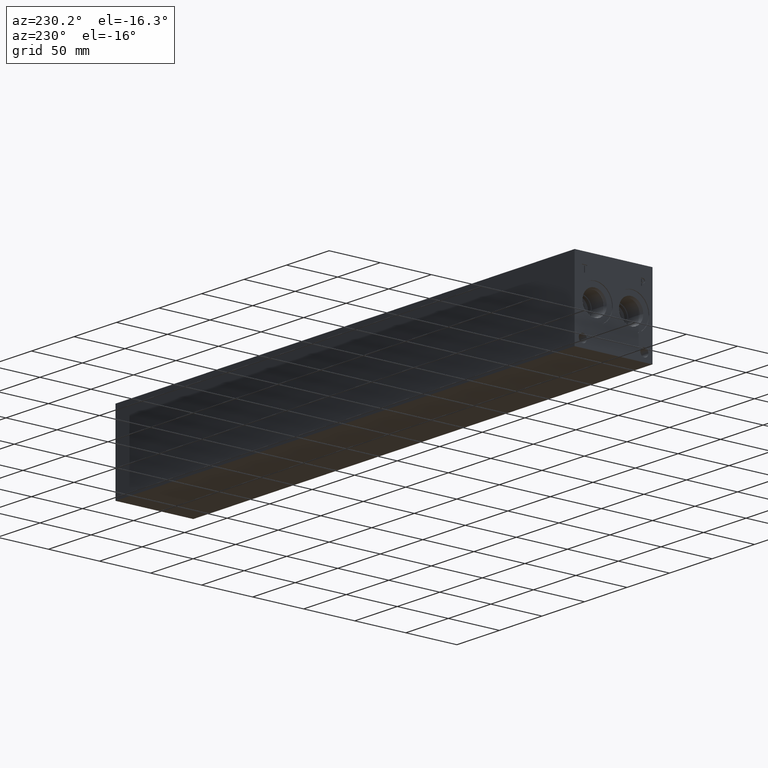
[diagram: clean part render]
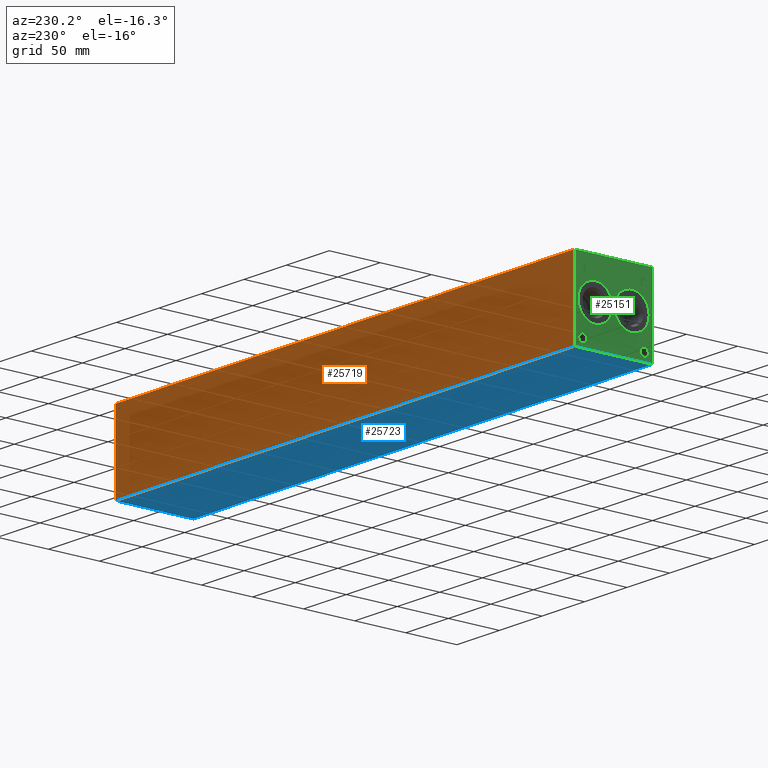
[diagram: same view with three faces highlighted in distinct colors, each labeled with its STEP entity id]
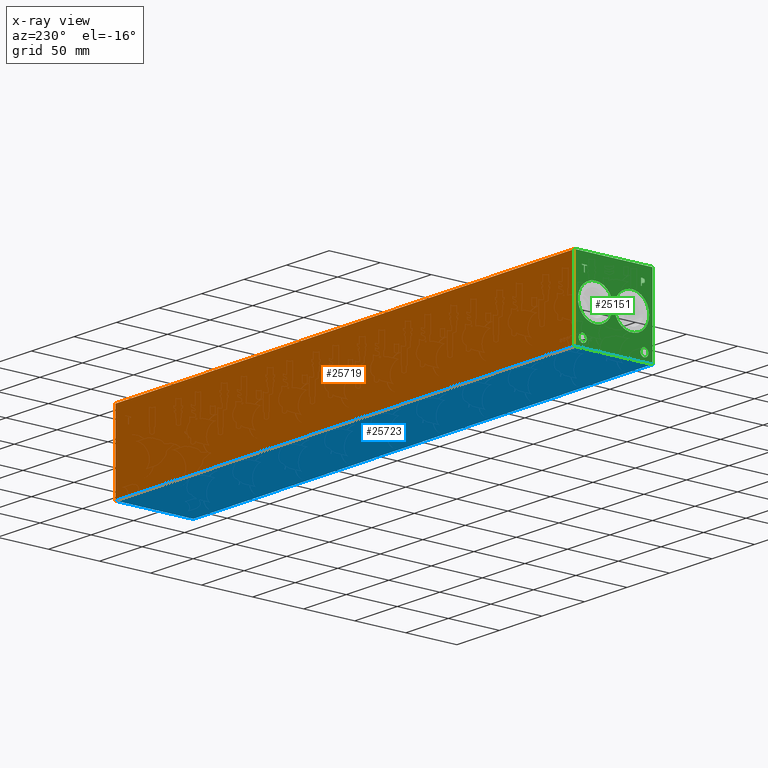
[diagram: x-ray of the same camera — body ghosted, the three highlighted faces saturated]
A machine part, auxiliary view with three faces highlighted in distinct colors.
The next image is the same camera in x-ray (body ghosted, the three faces saturated) — at least one of them is partly hidden behind the body in this view.
Their STEP definitions:

[orange] entity #25719 — the highlighted planar face has unit normal (0, 1, 0).
#3906=FACE_OUTER_BOUND('',#5468,.T.);
#5468=EDGE_LOOP('',(#22783,#22784,#22785,#22786));
#7082=LINE('',#41613,#9151);
#7142=LINE('',#41886,#9211);
#7630=LINE('',#44951,#9699);
#7631=LINE('',#44952,#9700);
#9151=VECTOR('',#30418,10.);
#9211=VECTOR('',#30532,10.);
#9699=VECTOR('',#34030,10.);
#9700=VECTOR('',#34031,10.);
#11099=VERTEX_POINT('',#41610);
#11100=VERTEX_POINT('',#41612);
#11157=VERTEX_POINT('',#41882);
#11158=VERTEX_POINT('',#41884);
#14306=EDGE_CURVE('',#11099,#11100,#7082,.T.);
#14390=EDGE_CURVE('',#11157,#11158,#7142,.T.);
#15815=EDGE_CURVE('',#11099,#11157,#7630,.T.);
#15816=EDGE_CURVE('',#11100,#11158,#7631,.T.);
#22783=ORIENTED_EDGE('',*,*,#15815,.T.);
#22784=ORIENTED_EDGE('',*,*,#14390,.T.);
#22785=ORIENTED_EDGE('',*,*,#15816,.F.);
#22786=ORIENTED_EDGE('',*,*,#14306,.F.);
#23611=PLANE('',#27810);
#25719=ADVANCED_FACE('',(#3906),#23611,.T.);
#27810=AXIS2_PLACEMENT_3D('',#44950,#34028,#34029);
#30418=DIRECTION('',(0.,0.,1.));
#30532=DIRECTION('',(0.,0.,1.));
#34028=DIRECTION('center_axis',(0.,1.,0.));
#34029=DIRECTION('ref_axis',(-1.,0.,0.));
#34030=DIRECTION('',(-1.,0.,0.));
#34031=DIRECTION('',(-1.,0.,0.));
#41610=CARTESIAN_POINT('',(539.75,76.2,0.));
#41612=CARTESIAN_POINT('',(539.75,76.2,76.2));
#41613=CARTESIAN_POINT('',(539.75,76.2,0.));
#41882=CARTESIAN_POINT('',(0.,76.2,0.));
#41884=CARTESIAN_POINT('',(0.,76.2,76.2));
#41886=CARTESIAN_POINT('',(0.,76.2,0.));
#44950=CARTESIAN_POINT('Origin',(539.75,76.2,0.));
#44951=CARTESIAN_POINT('',(539.75,76.2,0.));
#44952=CARTESIAN_POINT('',(539.75,76.2,76.2));

[blue] entity #25723 — the highlighted planar face has unit normal (0, 0, 1).
#3910=FACE_OUTER_BOUND('',#5562,.T.);
#5562=EDGE_LOOP('',(#22985,#22986,#22987,#22988));
#5830=LINE('',#36066,#7899);
#7081=LINE('',#41611,#9150);
#7140=LINE('',#41883,#9209);
#7630=LINE('',#44951,#9699);
#7899=VECTOR('',#28224,10.);
#9150=VECTOR('',#30417,10.);
#9209=VECTOR('',#30530,10.);
#9699=VECTOR('',#34030,10.);
#9995=VERTEX_POINT('',#36064);
#9996=VERTEX_POINT('',#36065);
#11099=VERTEX_POINT('',#41610);
#11157=VERTEX_POINT('',#41882);
#12672=EDGE_CURVE('',#9995,#9996,#5830,.T.);
#14305=EDGE_CURVE('',#9996,#11099,#7081,.T.);
#14388=EDGE_CURVE('',#11157,#9995,#7140,.T.);
#15815=EDGE_CURVE('',#11099,#11157,#7630,.T.);
#22985=ORIENTED_EDGE('',*,*,#12672,.F.);
#22986=ORIENTED_EDGE('',*,*,#14388,.F.);
#22987=ORIENTED_EDGE('',*,*,#15815,.F.);
#22988=ORIENTED_EDGE('',*,*,#14305,.F.);
#23615=PLANE('',#27814);
#25723=ADVANCED_FACE('',(#3910),#23615,.F.);
#27814=AXIS2_PLACEMENT_3D('',#44956,#34038,#34039);
#28224=DIRECTION('',(1.,0.,0.));
#30417=DIRECTION('',(0.,1.,0.));
#30530=DIRECTION('',(0.,-1.,0.));
#34030=DIRECTION('',(-1.,0.,0.));
#34038=DIRECTION('center_axis',(0.,0.,1.));
#34039=DIRECTION('ref_axis',(1.,0.,0.));
#36064=CARTESIAN_POINT('',(0.,0.,0.));
#36065=CARTESIAN_POINT('',(539.75,0.,0.));
#36066=CARTESIAN_POINT('',(0.,0.,0.));
#41610=CARTESIAN_POINT('',(539.75,76.2,0.));
#41611=CARTESIAN_POINT('',(539.75,0.,0.));
#41882=CARTESIAN_POINT('',(0.,76.2,0.));
#41883=CARTESIAN_POINT('',(0.,76.2,0.));
#44951=CARTESIAN_POINT('',(539.75,76.2,0.));
#44956=CARTESIAN_POINT('Origin',(269.875,38.1,0.));

[green] entity #25151 — the highlighted planar face has unit normal (-1, 0, 0).
#527=CIRCLE('',#26306,17.0688);
#528=CIRCLE('',#26307,17.0688);
#529=CIRCLE('',#26308,17.0688);
#530=CIRCLE('',#26309,17.0688);
#531=CIRCLE('',#26310,3.9624);
#532=CIRCLE('',#26311,3.9624);
#533=CIRCLE('',#26312,3.9624);
#534=CIRCLE('',#26313,3.9624);
#1571=FACE_BOUND('',#4801,.T.);
#1572=FACE_BOUND('',#4802,.T.);
#1573=FACE_BOUND('',#4803,.T.);
#1574=FACE_BOUND('',#4804,.T.);
#1575=FACE_BOUND('',#4805,.T.);
#1576=FACE_BOUND('',#4806,.T.);
#2283=B_SPLINE_CURVE_WITH_KNOTS('',2,(#41784,#41785,#41786,#41787),
 .UNSPECIFIED.,.F.,.F.,(3,1,3),(0.,1.,2.),.UNSPECIFIED.);
#2285=B_SPLINE_CURVE_WITH_KNOTS('',2,(#41805,#41806,#41807,#41808),
 .UNSPECIFIED.,.F.,.F.,(3,1,3),(0.,1.,2.),.UNSPECIFIED.);
#2287=B_SPLINE_CURVE_WITH_KNOTS('',2,(#41854,#41855,#41856,#41857),
 .UNSPECIFIED.,.F.,.F.,(3,1,3),(0.,1.,2.),.UNSPECIFIED.);
#2289=B_SPLINE_CURVE_WITH_KNOTS('',2,(#41872,#41873,#41874,#41875),
 .UNSPECIFIED.,.F.,.F.,(3,1,3),(0.,1.,2.),.UNSPECIFIED.);
#3338=FACE_OUTER_BOUND('',#4800,.T.);
#4800=EDGE_LOOP('',(#20045,#20046,#20047,#20048));
#4801=EDGE_LOOP('',(#20049,#20050));
#4802=EDGE_LOOP('',(#20051,#20052));
#4803=EDGE_LOOP('',(#20053,#20054));
#4804=EDGE_LOOP('',(#20055,#20056));
#4805=EDGE_LOOP('',(#20057,#20058,#20059,#20060,#20061,#20062,#20063,#20064));
#4806=EDGE_LOOP('',(#20065,#20066,#20067,#20068,#20069,#20070,#20071,#20072,
#20073));
#5833=LINE('',#36071,#7902);
#7124=LINE('',#41817,#9193);
#7127=LINE('',#41823,#9196);
#7130=LINE('',#41829,#9199);
#7133=LINE('',#41835,#9202);
#7136=LINE('',#41841,#9205);
#7140=LINE('',#41883,#9209);
#7141=LINE('',#41885,#9210);
#7142=LINE('',#41886,#9211);
#7143=LINE('',#41905,#9212);
#7144=LINE('',#41907,#9213);
#7145=LINE('',#41909,#9214);
#7146=LINE('',#41911,#9215);
#7147=LINE('',#41913,#9216);
#7148=LINE('',#41915,#9217);
#7149=LINE('',#41917,#9218);
#7150=LINE('',#41918,#9219);
#7902=VECTOR('',#28227,10.);
#9193=VECTOR('',#30502,10.);
#9196=VECTOR('',#30507,10.);
#9199=VECTOR('',#30512,10.);
#9202=VECTOR('',#30517,10.);
#9205=VECTOR('',#30522,10.);
#9209=VECTOR('',#30530,10.);
#9210=VECTOR('',#30531,10.);
#9211=VECTOR('',#30532,10.);
#9212=VECTOR('',#30549,10.);
#9213=VECTOR('',#30550,10.);
#9214=VECTOR('',#30551,10.);
#9215=VECTOR('',#30552,10.);
#9216=VECTOR('',#30553,10.);
#9217=VECTOR('',#30554,10.);
#9218=VECTOR('',#30555,10.);
#9219=VECTOR('',#30556,10.);
#9995=VERTEX_POINT('',#36064);
#9998=VERTEX_POINT('',#36069);
#11139=VERTEX_POINT('',#41782);
#11140=VERTEX_POINT('',#41783);
#11143=VERTEX_POINT('',#41804);
#11145=VERTEX_POINT('',#41816);
#11147=VERTEX_POINT('',#41822);
#11149=VERTEX_POINT('',#41828);
#11151=VERTEX_POINT('',#41834);
#11153=VERTEX_POINT('',#41840);
#11155=VERTEX_POINT('',#41853);
#11157=VERTEX_POINT('',#41882);
#11158=VERTEX_POINT('',#41884);
#11159=VERTEX_POINT('',#41887);
#11160=VERTEX_POINT('',#41888);
#11161=VERTEX_POINT('',#41891);
#11162=VERTEX_POINT('',#41892);
#11163=VERTEX_POINT('',#41895);
#11164=VERTEX_POINT('',#41896);
#11165=VERTEX_POINT('',#41899);
#11166=VERTEX_POINT('',#41900);
#11167=VERTEX_POINT('',#41903);
#11168=VERTEX_POINT('',#41904);
#11169=VERTEX_POINT('',#41906);
#11170=VERTEX_POINT('',#41908);
#11171=VERTEX_POINT('',#41910);
#11172=VERTEX_POINT('',#41912);
#11173=VERTEX_POINT('',#41914);
#11174=VERTEX_POINT('',#41916);
#12675=EDGE_CURVE('',#9995,#9998,#5833,.T.);
#14361=EDGE_CURVE('',#11139,#11140,#2283,.T.);
#14365=EDGE_CURVE('',#11143,#11139,#2285,.T.);
#14368=EDGE_CURVE('',#11145,#11143,#7124,.T.);
#14371=EDGE_CURVE('',#11147,#11145,#7127,.T.);
#14374=EDGE_CURVE('',#11149,#11147,#7130,.T.);
#14377=EDGE_CURVE('',#11151,#11149,#7133,.T.);
#14380=EDGE_CURVE('',#11153,#11151,#7136,.T.);
#14383=EDGE_CURVE('',#11155,#11153,#2287,.T.);
#14386=EDGE_CURVE('',#11140,#11155,#2289,.T.);
#14388=EDGE_CURVE('',#11157,#9995,#7140,.T.);
#14389=EDGE_CURVE('',#11158,#9998,#7141,.T.);
#14390=EDGE_CURVE('',#11157,#11158,#7142,.T.);
#14391=EDGE_CURVE('',#11159,#11160,#527,.T.);
#14392=EDGE_CURVE('',#11160,#11159,#528,.T.);
#14393=EDGE_CURVE('',#11161,#11162,#529,.T.);
#14394=EDGE_CURVE('',#11162,#11161,#530,.T.);
#14395=EDGE_CURVE('',#11163,#11164,#531,.T.);
#14396=EDGE_CURVE('',#11164,#11163,#532,.T.);
#14397=EDGE_CURVE('',#11165,#11166,#533,.T.);
#14398=EDGE_CURVE('',#11166,#11165,#534,.T.);
#14399=EDGE_CURVE('',#11167,#11168,#7143,.T.);
#14400=EDGE_CURVE('',#11168,#11169,#7144,.T.);
#14401=EDGE_CURVE('',#11169,#11170,#7145,.T.);
#14402=EDGE_CURVE('',#11170,#11171,#7146,.T.);
#14403=EDGE_CURVE('',#11171,#11172,#7147,.T.);
#14404=EDGE_CURVE('',#11172,#11173,#7148,.T.);
#14405=EDGE_CURVE('',#11173,#11174,#7149,.T.);
#14406=EDGE_CURVE('',#11174,#11167,#7150,.T.);
#20045=ORIENTED_EDGE('',*,*,#14388,.T.);
#20046=ORIENTED_EDGE('',*,*,#12675,.T.);
#20047=ORIENTED_EDGE('',*,*,#14389,.F.);
#20048=ORIENTED_EDGE('',*,*,#14390,.F.);
#20049=ORIENTED_EDGE('',*,*,#14391,.T.);
#20050=ORIENTED_EDGE('',*,*,#14392,.T.);
#20051=ORIENTED_EDGE('',*,*,#14393,.T.);
#20052=ORIENTED_EDGE('',*,*,#14394,.T.);
#20053=ORIENTED_EDGE('',*,*,#14395,.T.);
#20054=ORIENTED_EDGE('',*,*,#14396,.T.);
#20055=ORIENTED_EDGE('',*,*,#14397,.T.);
#20056=ORIENTED_EDGE('',*,*,#14398,.T.);
#20057=ORIENTED_EDGE('',*,*,#14399,.T.);
#20058=ORIENTED_EDGE('',*,*,#14400,.T.);
#20059=ORIENTED_EDGE('',*,*,#14401,.T.);
#20060=ORIENTED_EDGE('',*,*,#14402,.T.);
#20061=ORIENTED_EDGE('',*,*,#14403,.T.);
#20062=ORIENTED_EDGE('',*,*,#14404,.T.);
#20063=ORIENTED_EDGE('',*,*,#14405,.T.);
#20064=ORIENTED_EDGE('',*,*,#14406,.T.);
#20065=ORIENTED_EDGE('',*,*,#14361,.T.);
#20066=ORIENTED_EDGE('',*,*,#14386,.T.);
#20067=ORIENTED_EDGE('',*,*,#14383,.T.);
#20068=ORIENTED_EDGE('',*,*,#14380,.T.);
#20069=ORIENTED_EDGE('',*,*,#14377,.T.);
#20070=ORIENTED_EDGE('',*,*,#14374,.T.);
#20071=ORIENTED_EDGE('',*,*,#14371,.T.);
#20072=ORIENTED_EDGE('',*,*,#14368,.T.);
#20073=ORIENTED_EDGE('',*,*,#14365,.T.);
#23506=PLANE('',#26305);
#25151=ADVANCED_FACE('',(#3338,#1571,#1572,#1573,#1574,#1575,#1576),#23506,
 .T.);
#26305=AXIS2_PLACEMENT_3D('',#41881,#30528,#30529);
#26306=AXIS2_PLACEMENT_3D('',#41889,#30533,#30534);
#26307=AXIS2_PLACEMENT_3D('',#41890,#30535,#30536);
#26308=AXIS2_PLACEMENT_3D('',#41893,#30537,#30538);
#26309=AXIS2_PLACEMENT_3D('',#41894,#30539,#30540);
#26310=AXIS2_PLACEMENT_3D('',#41897,#30541,#30542);
#26311=AXIS2_PLACEMENT_3D('',#41898,#30543,#30544);
#26312=AXIS2_PLACEMENT_3D('',#41901,#30545,#30546);
#26313=AXIS2_PLACEMENT_3D('',#41902,#30547,#30548);
#28227=DIRECTION('',(0.,0.,1.));
#30502=DIRECTION('',(0.,-1.,0.));
#30507=DIRECTION('',(0.,-3.14708893596577E-15,1.));
#30512=DIRECTION('',(0.,1.,1.0524411238433E-14));
#30517=DIRECTION('',(0.,3.75218139804999E-15,-1.));
#30522=DIRECTION('',(0.,1.,1.24172909575755E-14));
#30528=DIRECTION('center_axis',(-1.,0.,0.));
#30529=DIRECTION('ref_axis',(0.,-1.,0.));
#30530=DIRECTION('',(0.,-1.,0.));
#30531=DIRECTION('',(0.,-1.,0.));
#30532=DIRECTION('',(0.,0.,1.));
#30533=DIRECTION('center_axis',(1.,0.,0.));
#30534=DIRECTION('ref_axis',(0.,0.,1.));
#30535=DIRECTION('center_axis',(1.,0.,0.));
#30536=DIRECTION('ref_axis',(0.,0.,1.));
#30537=DIRECTION('center_axis',(1.,0.,0.));
#30538=DIRECTION('ref_axis',(0.,1.,0.));
#30539=DIRECTION('center_axis',(1.,0.,0.));
#30540=DIRECTION('ref_axis',(0.,1.,0.));
#30541=DIRECTION('center_axis',(1.,0.,0.));
#30542=DIRECTION('ref_axis',(0.,1.,0.));
#30543=DIRECTION('center_axis',(1.,0.,0.));
#30544=DIRECTION('ref_axis',(0.,1.,0.));
#30545=DIRECTION('center_axis',(1.,0.,0.));
#30546=DIRECTION('ref_axis',(0.,1.,0.));
#30547=DIRECTION('center_axis',(1.,0.,0.));
#30548=DIRECTION('ref_axis',(0.,1.,0.));
#30549=DIRECTION('',(0.,1.,0.));
#30550=DIRECTION('',(0.,-3.17280044688052E-15,1.));
#30551=DIRECTION('',(0.,1.,4.16909044227779E-15));
#30552=DIRECTION('',(0.,0.,1.));
#30553=DIRECTION('',(0.,-1.,-3.47984565141734E-15));
#30554=DIRECTION('',(0.,0.,-1.));
#30555=DIRECTION('',(0.,1.,4.16909044227778E-15));
#30556=DIRECTION('',(0.,3.17280044688052E-15,-1.));
#36064=CARTESIAN_POINT('',(0.,0.,0.));
#36069=CARTESIAN_POINT('',(0.,0.,76.2));
#36071=CARTESIAN_POINT('',(0.,0.,0.));
#41782=CARTESIAN_POINT('',(0.,8.00568279764059,65.4850181439707));
#41783=CARTESIAN_POINT('',(0.,7.249240345468,63.9669873726039));
#41784=CARTESIAN_POINT('Ctrl Pts',(0.,8.00568279764059,65.4850181439707));
#41785=CARTESIAN_POINT('Ctrl Pts',(0.,7.65061797315141,65.2431623939564));
#41786=CARTESIAN_POINT('Ctrl Pts',(0.,7.249240345468,64.4970116758269));
#41787=CARTESIAN_POINT('Ctrl Pts',(0.,7.249240345468,63.9669873726039));
#41804=CARTESIAN_POINT('',(0.,9.66779784561168,65.8812499046326));
#41805=CARTESIAN_POINT('Ctrl Pts',(0.,9.66779784561168,65.8812499046326));
#41806=CARTESIAN_POINT('Ctrl Pts',(0.,9.10175247323762,65.8812499046326));
#41807=CARTESIAN_POINT('Ctrl Pts',(0.,8.30928895191395,65.6959986918556));
#41808=CARTESIAN_POINT('Ctrl Pts',(0.,8.00568279764059,65.4850181439707));
#41816=CARTESIAN_POINT('',(0.,11.2630166223022,65.8812499046326));
#41817=CARTESIAN_POINT('',(0.,43.7315083111511,65.8812499046326));
#41822=CARTESIAN_POINT('',(0.,11.2630166223022,59.53125));
#41823=CARTESIAN_POINT('',(0.,11.2630166223023,29.7656249999999));
#41828=CARTESIAN_POINT('',(0.,10.4190944307627,59.53125));
#41829=CARTESIAN_POINT('',(0.,43.3095472153811,59.5312500000003));
#41834=CARTESIAN_POINT('',(0.,10.4190944307627,61.8983488299279));
#41835=CARTESIAN_POINT('',(0.,10.4190944307628,30.9491744149638));
#41840=CARTESIAN_POINT('',(0.,9.70381891476276,61.8983488299279));
#41841=CARTESIAN_POINT('',(0.,42.951909457381,61.8983488299283));
#41853=CARTESIAN_POINT('',(0.,7.80499398379889,62.5570198086904));
#41854=CARTESIAN_POINT('Ctrl Pts',(0.,7.80499398379889,62.5570198086904));
#41855=CARTESIAN_POINT('Ctrl Pts',(0.,8.13432947318016,62.2328301863307));
#41856=CARTESIAN_POINT('Ctrl Pts',(0.,9.0245644679139,61.8983488299279));
#41857=CARTESIAN_POINT('Ctrl Pts',(0.,9.70381891476276,61.8983488299279));
#41872=CARTESIAN_POINT('Ctrl Pts',(0.,7.249240345468,63.9669873726039));
#41873=CARTESIAN_POINT('Ctrl Pts',(0.,7.249240345468,63.5553180108774));
#41874=CARTESIAN_POINT('Ctrl Pts',(0.,7.54255476569819,62.8143131597695));
#41875=CARTESIAN_POINT('Ctrl Pts',(0.,7.80499398379889,62.5570198086904));
#41881=CARTESIAN_POINT('Origin',(0.,76.2,0.));
#41882=CARTESIAN_POINT('',(0.,76.2,0.));
#41883=CARTESIAN_POINT('',(0.,76.2,0.));
#41884=CARTESIAN_POINT('',(0.,76.2,76.2));
#41885=CARTESIAN_POINT('',(0.,76.2,76.2));
#41886=CARTESIAN_POINT('',(0.,76.2,0.));
#41887=CARTESIAN_POINT('',(0.,55.9562,55.1688));
#41888=CARTESIAN_POINT('',(0.,55.9562,21.0312));
#41889=CARTESIAN_POINT('Origin',(0.,55.9562,38.1));
#41890=CARTESIAN_POINT('Origin',(0.,55.9562,38.1));
#41891=CARTESIAN_POINT('',(0.,37.3126,38.1));
#41892=CARTESIAN_POINT('',(0.,3.175,38.1));
#41893=CARTESIAN_POINT('Origin',(0.,20.2438,38.1));
#41894=CARTESIAN_POINT('Origin',(0.,20.2438,38.1));
#41895=CARTESIAN_POINT('',(0.,11.8872,7.92480000000001));
#41896=CARTESIAN_POINT('',(0.,3.9624,7.92480000000001));
#41897=CARTESIAN_POINT('Origin',(0.,7.9248,7.92480000000001));
#41898=CARTESIAN_POINT('Origin',(0.,7.9248,7.92480000000001));
#41899=CARTESIAN_POINT('',(0.,72.2376,7.92480000000001));
#41900=CARTESIAN_POINT('',(0.,64.3128,7.92480000000001));
#41901=CARTESIAN_POINT('Origin',(0.,68.2752,7.92480000000001));
#41902=CARTESIAN_POINT('Origin',(0.,68.2752,7.92480000000001));
#41903=CARTESIAN_POINT('',(0.,66.087084728547,59.53125));
#41904=CARTESIAN_POINT('',(0.,66.9310069200865,59.53125));
#41905=CARTESIAN_POINT('',(0.,71.1435423642735,59.53125));
#41906=CARTESIAN_POINT('',(0.,66.9310069200865,65.1299533194816));
#41907=CARTESIAN_POINT('',(0.,66.9310069200866,29.765625));
#41908=CARTESIAN_POINT('',(0.,69.0613958670216,65.1299533194816));
#41909=CARTESIAN_POINT('',(0.,71.5655034600431,65.1299533194816));
#41910=CARTESIAN_POINT('',(0.,69.0613958670216,65.8812499046326));
#41911=CARTESIAN_POINT('',(0.,69.0613958670216,32.5649766597408));
#41912=CARTESIAN_POINT('',(0.,63.9566957816119,65.8812499046326));
#41913=CARTESIAN_POINT('',(0.,72.6306979335107,65.8812499046326));
#41914=CARTESIAN_POINT('',(0.,63.9566957816119,65.1299533194816));
#41915=CARTESIAN_POINT('',(0.,63.9566957816119,32.9406249523163));
#41916=CARTESIAN_POINT('',(0.,66.087084728547,65.1299533194816));
#41917=CARTESIAN_POINT('',(0.,70.0783478908058,65.1299533194816));
#41918=CARTESIAN_POINT('',(0.,66.0870847285471,32.5649766597408));